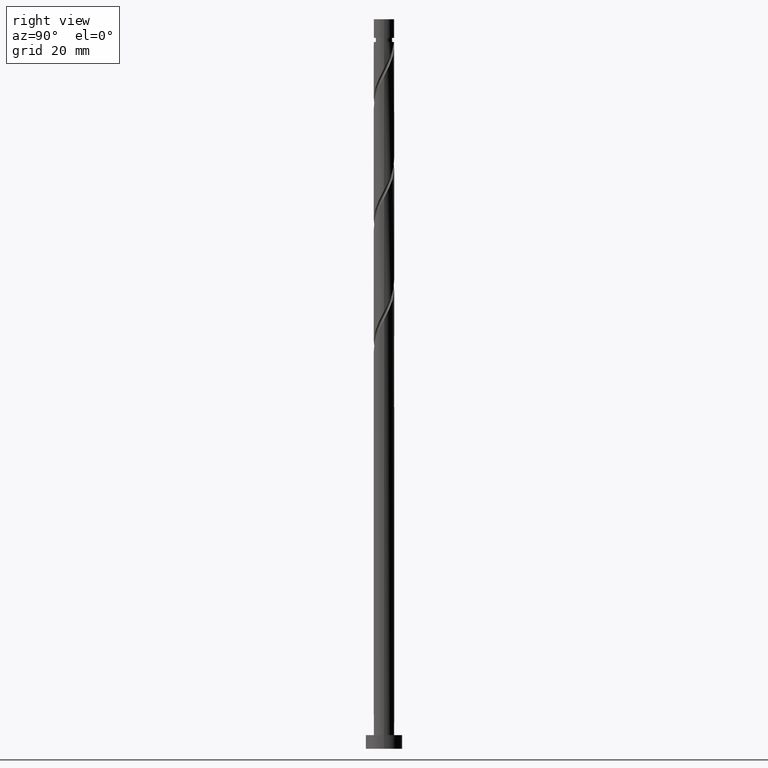
[diagram: clean part render]
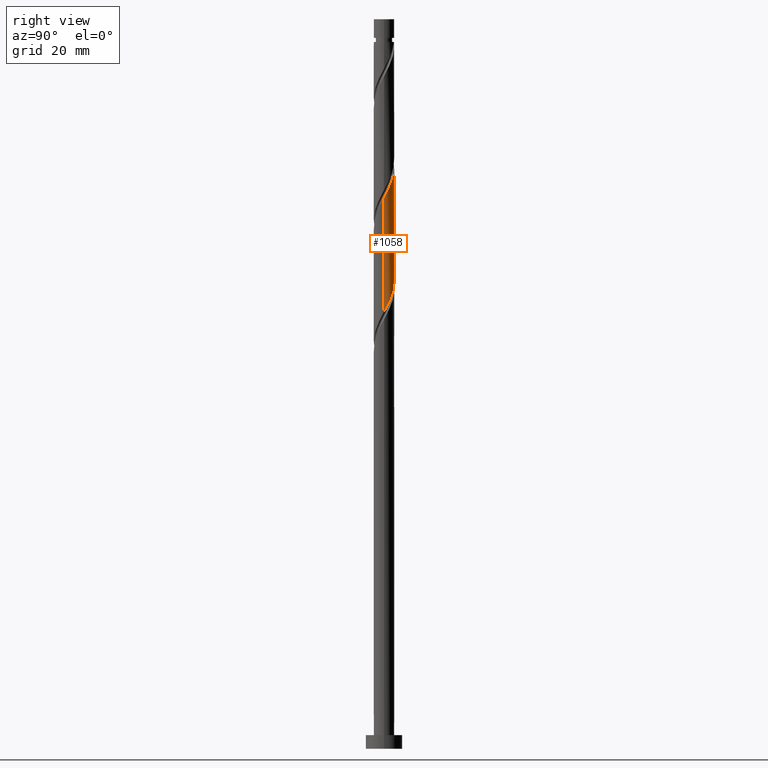
[diagram: same view with one face highlighted and labeled with its STEP entity id]
A machine part, right view. The second image highlights one B-rep face of the part: STEP entity #1058.
In plain terms, the highlighted cylindrical surface (edge-blend (fillet) strip) has radius 2.25 mm, axis along (-0, -0, -1).
Its self-contained STEP definition (entity closure, byte-faithful):
#38 = CARTESIAN_POINT ( 'NONE',  ( -2.246276943635557188, 0.1293827364500370891, 108.9489713006598777 ) ) ;
#68 = CYLINDRICAL_SURFACE ( 'NONE', #1387, 2.250000000000000000 ) ;
#78 = CARTESIAN_POINT ( 'NONE',  ( -0.1916127332030274633, 2.241826166426483358, 102.8883652400538011 ) ) ;
#87 =( BOUNDED_CURVE ( )  B_SPLINE_CURVE ( 2, ( #545, #300, #38, #1069, #447, #556, #1054, #437, #566, #322, #746, #354, #78, #1490, #1365, #865, #600, #226, #206, #1370, #220, #741, #466, #1099, #350 ),
 .UNSPECIFIED., .F., .T. ) 
 B_SPLINE_CURVE_WITH_KNOTS ( ( 3, 2, 2, 2, 2, 2, 2, 2, 2, 2, 2, 2, 3 ),
 ( 0.6795252162417515507, 0.6818181818181817677, 0.6931818181818182323, 0.7045454545454545858, 0.7159090909090909394, 0.7272727272727272929, 0.7386363636363636465, 0.7500000000000000000, 0.7613636363636363535, 0.7727272727272727071, 0.7840909090909090606, 0.7954545454545454142, 0.8045252162417513286 ),
 .UNSPECIFIED. ) 
 CURVE ( )  GEOMETRIC_REPRESENTATION_ITEM ( )  RATIONAL_B_SPLINE_CURVE ( ( 0.9061101570135630112, 0.9072237824201452305, 0.9090909090909224943, 0.8998376744372248437, 0.9090909090909224943, 0.8998376744372248437, 0.9090909090909224943, 0.8998376744372248437, 0.9090909090909224943, 0.8998376744372248437, 0.9090909090909224943, 0.8998376744372248437, 0.9090909090909224943, 0.8998376744372248437, 0.9090909090909224943, 0.8998376744372248437, 0.9090909090909224943, 0.8998376744372248437, 0.9090909090909224943, 0.8998376744372248437, 0.9090909090909224943, 0.8998376744372248437, 0.9090909090909224943, 0.9017048011080023295, 0.9061101570135629002 ) ) 
 REPRESENTATION_ITEM ( '' )  );
#106 = CARTESIAN_POINT ( 'NONE',  ( 0.8154464890247291597, 2.097032909502675846, 125.9186682703568323 ) ) ;
#169 = VERTEX_POINT ( 'NONE', #518 ) ;
#175 = EDGE_CURVE ( 'NONE', #973, #459, #959, .T. ) ;
#206 = CARTESIAN_POINT ( 'NONE',  ( 1.568779515954456860, 1.612895170282836466, 99.25200160369014668 ) ) ;
#209 = VERTEX_POINT ( 'NONE', #1207 ) ;
#220 = CARTESIAN_POINT ( 'NONE',  ( 1.959638002949630309, 1.105585318912829962, 98.03988039156894274 ) ) ;
#226 = CARTESIAN_POINT ( 'NONE',  ( 1.336880199978459194, 1.838451612741027974, 99.85806220975074154 ) ) ;
#245 = CARTESIAN_POINT ( 'NONE',  ( -2.250000000000003109, 4.472089390345386745E-15, 134.1601228819650373 ) ) ;
#300 = CARTESIAN_POINT ( 'NONE',  ( -2.249999999999999112, 0.06474493467860836793, 109.0702671691819319 ) ) ;
#320 = CARTESIAN_POINT ( 'NONE',  ( 0.000000000000000000, 0.000000000000000000, 160.0000000000000000 ) ) ;
#322 = CARTESIAN_POINT ( 'NONE',  ( -1.116954303204337640, 1.979789404466506308, 104.7065470582356284 ) ) ;
#331 = VECTOR ( 'NONE', #1223, 1000.000000000000000 ) ;
#344 = DIRECTION ( 'NONE',  ( -0.000000000000000000, -0.000000000000000000, -1.000000000000000000 ) ) ;
#350 = CARTESIAN_POINT ( 'NONE',  ( 2.250000000000000000, 3.380241478990181135E-15, 95.85903184056681425 ) ) ;
#354 = CARTESIAN_POINT ( 'NONE',  ( -0.5139386748451184594, 2.214276414538838278, 103.4944258461143960 ) ) ;
#360 = CARTESIAN_POINT ( 'NONE',  ( 0.1916127332030282959, 2.241826166426486910, 127.1307894824780504 ) ) ;
#367 = CARTESIAN_POINT ( 'NONE',  ( -1.959638002949633639, 1.105585318912831738, 131.9792743309628804 ) ) ;
#382 = CARTESIAN_POINT ( 'NONE',  ( 2.118835615059359689, 0.7569911732352244682, 122.2823046339932063 ) ) ;
#437 = CARTESIAN_POINT ( 'NONE',  ( -1.629480936700959059, 1.584911631105248020, 105.9186682703568465 ) ) ;
#447 = CARTESIAN_POINT ( 'NONE',  ( -2.118835615059355693, 0.7569911732352241351, 107.7368500885386453 ) ) ;
#453 = FACE_OUTER_BOUND ( 'NONE', #1019, .T. ) ;
#459 = VERTEX_POINT ( 'NONE', #1640 ) ;
#466 = CARTESIAN_POINT ( 'NONE',  ( 2.191738273361774958, 0.5087075201735702379, 96.82775917944773880 ) ) ;
#507 = CARTESIAN_POINT ( 'NONE',  ( -1.800678831930457857, 1.387338727824646289, 131.3732137249023140 ) ) ;
#518 = CARTESIAN_POINT ( 'NONE',  ( -2.249999999999999556, 8.742261701193629257E-15, 109.1923651739001286 ) ) ;
#545 = CARTESIAN_POINT ( 'NONE',  ( -2.249999999999999556, 8.742261701193629257E-15, 109.1923651739001286 ) ) ;
#547 = EDGE_CURVE ( 'NONE', #169, #209, #87, .T. ) ;
#556 = CARTESIAN_POINT ( 'NONE',  ( -2.009996715602341943, 1.061633743224248638, 107.1307894824780504 ) ) ;
#566 = CARTESIAN_POINT ( 'NONE',  ( -1.373217619952648239, 1.782350517785876720, 105.3126076642962090 ) ) ;
#600 = CARTESIAN_POINT ( 'NONE',  ( 1.050827842467677575, 1.989537847213448618, 100.4641228158113790 ) ) ;
#621 = CARTESIAN_POINT ( 'NONE',  ( 1.819738826151654054, 1.323272687164749328, 123.4944258461144244 ) ) ;
#639 = CARTESIAN_POINT ( 'NONE',  ( 1.116954303204339416, 1.979789404466509417, 125.3126076642961948 ) ) ;
#648 = EDGE_CURVE ( 'NONE', #973, #209, #986, .T. ) ;
#741 = CARTESIAN_POINT ( 'NONE',  ( 2.118597173968805869, 0.8238319100010139673, 97.43381978550831946 ) ) ;
#746 = CARTESIAN_POINT ( 'NONE',  ( -0.8154464890247279385, 2.097032909502672737, 104.1004864521750193 ) ) ;
#753 = CARTESIAN_POINT ( 'NONE',  ( -0.7647754849568966229, 2.140624081685873925, 128.9489713006598492 ) ) ;
#780 = CARTESIAN_POINT ( 'NONE',  ( 2.250000000000003109, 1.720034380902071385E-15, 120.8267895486317087 ) ) ;
#790 = CARTESIAN_POINT ( 'NONE',  ( 2.250000000000003553, 0.06474493467860607809, 120.9488875533499339 ) ) ;
#812 = CARTESIAN_POINT ( 'NONE',  ( 2.250000000000003109, 1.720034380902071385E-15, 120.8267895486317087 ) ) ;
#855 = CARTESIAN_POINT ( 'NONE',  ( 2.250000000000000000, 2.755455298081544285E-16, 160.0000000000000000 ) ) ;
#864 = CARTESIAN_POINT ( 'NONE',  ( -0.1307132084390629223, 2.269375918314132434, 127.7368500885386311 ) ) ;
#865 = CARTESIAN_POINT ( 'NONE',  ( 0.7647754849568960678, 2.140624081685869928, 101.0701834218719597 ) ) ;
#870 = CARTESIAN_POINT ( 'NONE',  ( -2.118597173968808978, 0.8238319100010174090, 132.5853349370234753 ) ) ;
#888 = ORIENTED_EDGE ( 'NONE', *, *, #1462, .F. ) ;
#934 = ORIENTED_EDGE ( 'NONE', *, *, #175, .F. ) ;
#952 = LINE ( 'NONE', #1448, #331 ) ;
#959 =( BOUNDED_CURVE ( )  B_SPLINE_CURVE ( 2, ( #780, #790, #1525, #1518, #382, #1294, #621, #1635, #1027, #639, #106, #1382, #360, #864, #1139, #753, #1655, #1509, #1250, #507, #367, #870, #1261, #1388, #245 ),
 .UNSPECIFIED., .F., .T. ) 
 B_SPLINE_CURVE_WITH_KNOTS ( ( 3, 2, 2, 2, 2, 2, 2, 2, 2, 2, 2, 2, 3 ),
 ( 0.4295252162417514952, 0.4318181818181817677, 0.4431818181818182323, 0.4545454545454545858, 0.4659090909090909394, 0.4772727272727272929, 0.4886363636363636465, 0.5000000000000000000, 0.5113636363636363535, 0.5227272727272727071, 0.5340909090909091717, 0.5454545454545454142, 0.5545252162417516617 ),
 .UNSPECIFIED. ) 
 CURVE ( )  GEOMETRIC_REPRESENTATION_ITEM ( )  RATIONAL_B_SPLINE_CURVE ( ( 0.9061101570135692285, 0.9072237824201513368, 0.9090909090909286006, 0.8998376744372309499, 0.9090909090909286006, 0.8998376744372309499, 0.9090909090909286006, 0.8998376744372309499, 0.9090909090909286006, 0.8998376744372309499, 0.9090909090909286006, 0.8998376744372309499, 0.9090909090909286006, 0.8998376744372309499, 0.9090909090909286006, 0.8998376744372309499, 0.9090909090909286006, 0.8998376744372309499, 0.9090909090909286006, 0.8998376744372309499, 0.9090909090909286006, 0.8998376744372309499, 0.9090909090909286006, 0.9017048011080082137, 0.9061101570135692285 ) ) 
 REPRESENTATION_ITEM ( '' )  );
#969 = DIRECTION ( 'NONE',  ( -0.000000000000000000, -0.000000000000000000, -1.000000000000000000 ) ) ;
#973 = VERTEX_POINT ( 'NONE', #812 ) ;
#986 = LINE ( 'NONE', #855, #1470 ) ;
#1019 = EDGE_LOOP ( 'NONE', ( #934, #1219, #1195, #888 ) ) ;
#1027 = CARTESIAN_POINT ( 'NONE',  ( 1.373217619952650237, 1.782350517785879829, 124.7065470582355857 ) ) ;
#1054 = CARTESIAN_POINT ( 'NONE',  ( -1.819738826151650279, 1.323272687164748218, 106.5247288764174414 ) ) ;
#1058 = ADVANCED_FACE ( 'NONE', ( #453 ), #68, .T. ) ;
#1069 = CARTESIAN_POINT ( 'NONE',  ( -2.227674514516368554, 0.4523486032462000761, 108.3429106945992544 ) ) ;
#1075 = DIRECTION ( 'NONE',  ( -1.000000000000000000, 0.000000000000000000, 0.000000000000000000 ) ) ;
#1099 = CARTESIAN_POINT ( 'NONE',  ( 2.249999999999999556, 0.2576900866165240944, 96.34499179353808529 ) ) ;
#1139 = CARTESIAN_POINT ( 'NONE',  ( -0.4477443466979793563, 2.205000000000003180, 128.3429106945992828 ) ) ;
#1195 = ORIENTED_EDGE ( 'NONE', *, *, #547, .F. ) ;
#1207 = CARTESIAN_POINT ( 'NONE',  ( 2.250000000000000000, 3.380241478990181135E-15, 95.85903184056681425 ) ) ;
#1219 = ORIENTED_EDGE ( 'NONE', *, *, #648, .T. ) ;
#1223 = DIRECTION ( 'NONE',  ( -0.000000000000000000, -0.000000000000000000, -1.000000000000000000 ) ) ;
#1250 = CARTESIAN_POINT ( 'NONE',  ( -1.568779515954459081, 1.612895170282839130, 130.7671531188417191 ) ) ;
#1261 = CARTESIAN_POINT ( 'NONE',  ( -2.191738273361778067, 0.5087075201735721253, 133.1913955430840986 ) ) ;
#1294 = CARTESIAN_POINT ( 'NONE',  ( 2.009996715602345496, 1.061633743224249082, 122.8883652400537869 ) ) ;
#1365 = CARTESIAN_POINT ( 'NONE',  ( 0.4477443466979801334, 2.204999999999999183, 101.6762440279325972 ) ) ;
#1370 = CARTESIAN_POINT ( 'NONE',  ( 1.800678831930455193, 1.387338727824644513, 98.64594099762955182 ) ) ;
#1382 = CARTESIAN_POINT ( 'NONE',  ( 0.5139386748451196807, 2.214276414538841831, 126.5247288764174414 ) ) ;
#1387 = AXIS2_PLACEMENT_3D ( 'NONE', #320, #344, #1075 ) ;
#1388 = CARTESIAN_POINT ( 'NONE',  ( -2.250000000000005329, 0.2576900866165190984, 133.6741629289937237 ) ) ;
#1448 = CARTESIAN_POINT ( 'NONE',  ( -2.250000000000000000, 0.000000000000000000, 160.0000000000000000 ) ) ;
#1462 = EDGE_CURVE ( 'NONE', #459, #169, #952, .T. ) ;
#1470 = VECTOR ( 'NONE', #969, 1000.000000000000000 ) ;
#1490 = CARTESIAN_POINT ( 'NONE',  ( 0.1307132084390634219, 2.269375918314128882, 102.2823046339931778 ) ) ;
#1509 = CARTESIAN_POINT ( 'NONE',  ( -1.336880199978460970, 1.838451612741030861, 130.1610925127810958 ) ) ;
#1518 = CARTESIAN_POINT ( 'NONE',  ( 2.227674514516372550, 0.4523486032461998541, 121.6762440279325688 ) ) ;
#1525 = CARTESIAN_POINT ( 'NONE',  ( 2.246276943635560741, 0.1293827364500363397, 121.0701834218719739 ) ) ;
#1635 = CARTESIAN_POINT ( 'NONE',  ( 1.629480936700962834, 1.584911631105248686, 124.1004864521750051 ) ) ;
#1640 = CARTESIAN_POINT ( 'NONE',  ( -2.250000000000003553, 4.472089390345385957E-15, 134.1601228819650373 ) ) ;
#1655 = CARTESIAN_POINT ( 'NONE',  ( -1.050827842467678686, 1.989537847213452171, 129.5550319067204725 ) ) ;